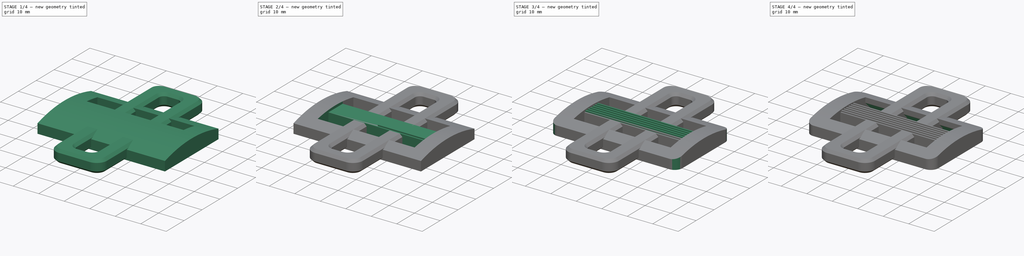
[diagram: build sequence overview — one tinted view per stage of 4, left to right]
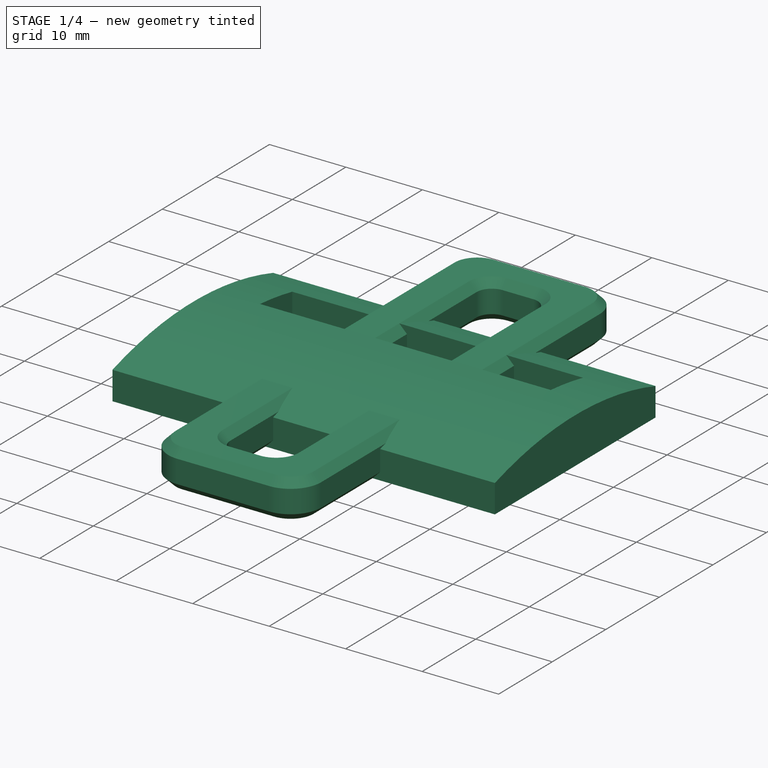
[diagram: stage 1 of 4 — iso view after this stage's code; geometry added in this stage tinted green]
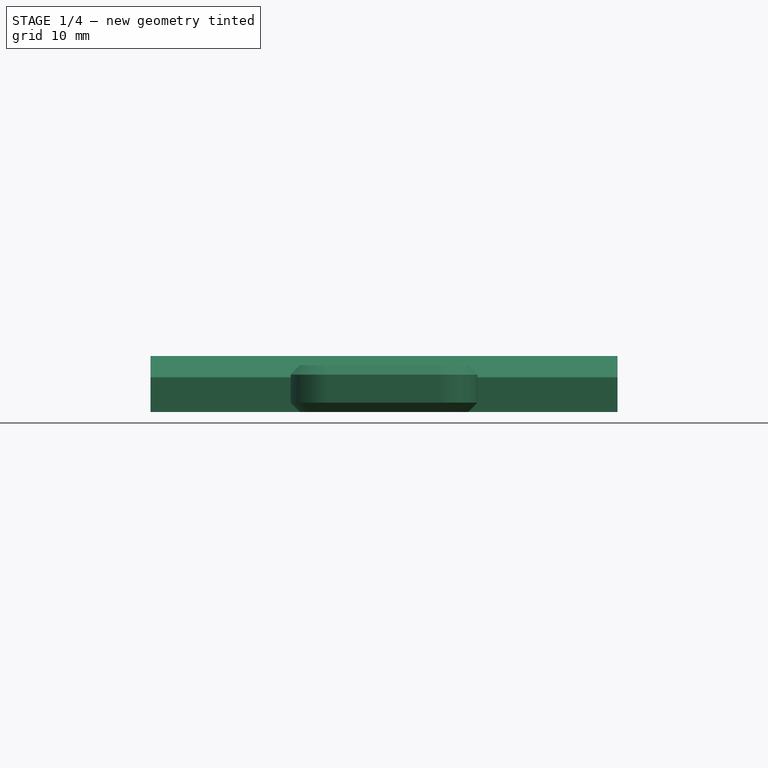
[diagram: stage 1 of 4 — front view after this stage's code; geometry added in this stage tinted green]
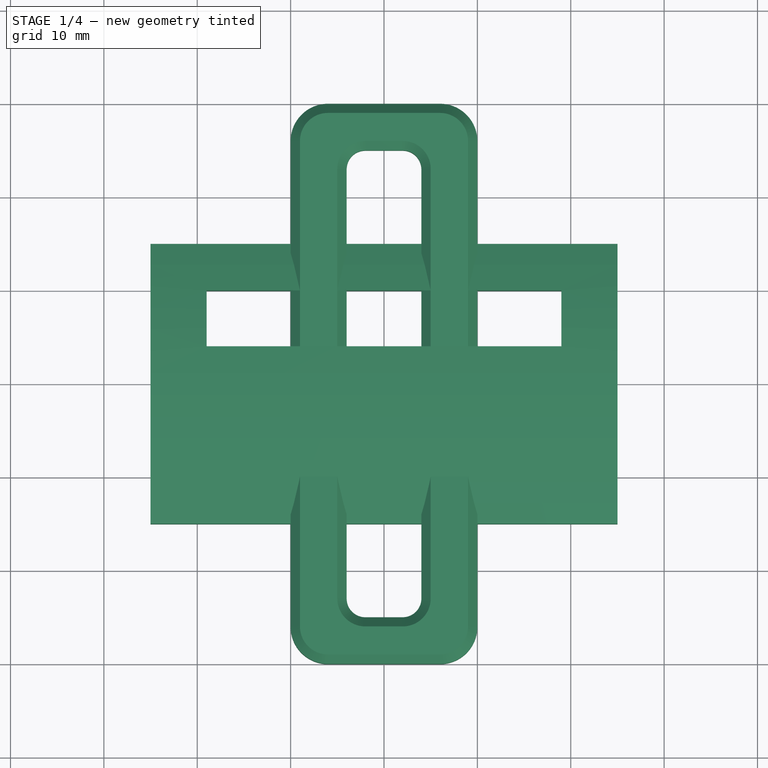
[diagram: stage 1 of 4 — top view after this stage's code; geometry added in this stage tinted green]
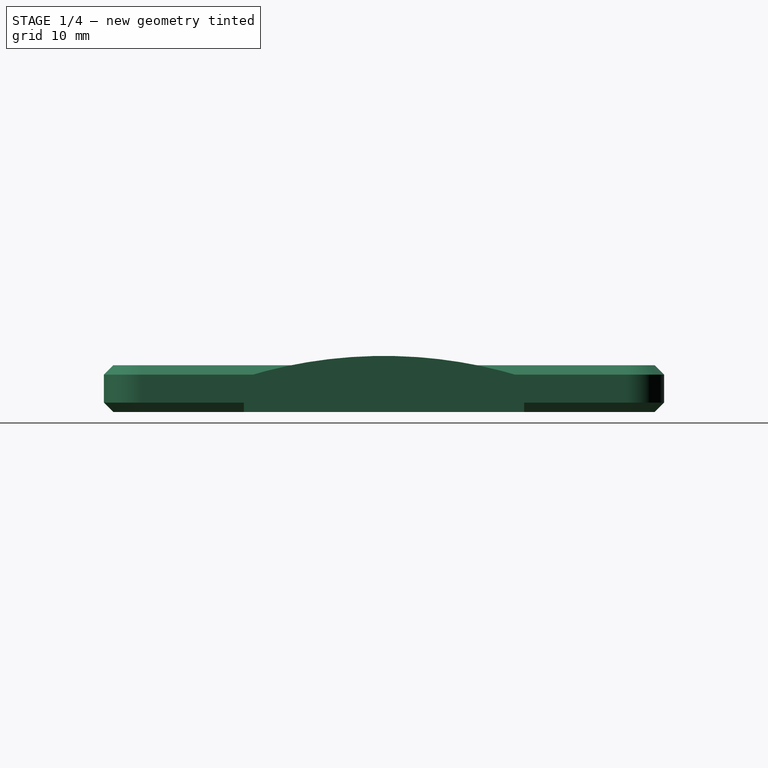
[diagram: stage 1 of 4 — right view after this stage's code; geometry added in this stage tinted green]
FCSTD DOCUMENT  (FreeCAD 2024.408R14555 (Git shallow))
Label: belt buckle
License: All rights reserved
LicenseURL: https://en.wikipedia.org/wiki/All_rights_reserved
objects: Sketcher::SketchObject×6, PartDesign::Pad×4, PartDesign::Pocket×3, PartDesign::Chamfer×3, PartDesign::Mirrored×2, PartDesign::Body×2, PartDesign::LinearPattern×1, PartDesign::Fillet×1
note: 56 computed .brp shape members not serialized (recipe doc carries the construction recipe); baked Part::Feature solids carry a one-line shape summary decoded from their .brp

FEATURE [Sketcher::SketchObject] Sketch
  ArcFitTolerance = 1e-06
  AttachmentSupport = -> [YZ_Plane]
  ExternalBSplineMaxDegree = 5
  ExternalBSplineTolerance = 0.0001
  FixShape = 1
  FullyConstrained = false
  InternalTolerance = 1e-06
  InvalidShape = false
  MakeInternals = false
  MapMode = 5
  Placement = pos=(0,0,0) rot=(0.57735,0.57735,0.57735;2.0944rad)
  Support = -> [YZ_Plane]
  TreeRank = 13
  ValidateShape = false
  sketch-geometry (5):
    g0: LineSegment StartX=-15 StartY=0 StartZ=0 EndX=-15 EndY=3.71209 EndZ=0
    g1: LineSegment StartX=-15 StartY=0 StartZ=0 EndX=15 EndY=0 EndZ=0
    g2: LineSegment StartX=15 StartY=0 StartZ=0 EndX=15 EndY=3.71209 EndZ=0
    g3: ArcOfCircle CenterX=0 CenterY=-44.3154 CenterZ=0 NormalX=0 NormalY=0 NormalZ=1 AngleXU=0 Radius=50.3154 StartAngle=1.26807 EndAngle=1.87352
    g4: LineSegment [constr] StartX=0 StartY=6 StartZ=0 EndX=0 EndY=0 EndZ=0
  constraints (14):
    c: PointOnObject(g0,g-1)
    c: Vertical(g0)
    c: Coincident(g1,g0)
    c: Coincident(g2,g1)
    c: Vertical(g2)
    c: PointOnObject(g3,g-2)
    c: Coincident(g3,g0)
    c: Coincident(g3,g2)
    c: Symmetric(g1,g0,g-2)
    c: DistanceX(g1,g1) = 30
    c: PointOnObject(g4,g3)
    c: Coincident(g4,g-1)
    c: Vertical(g4)
    c: DistanceY(g4,g4) = 6
FEATURE [PartDesign::Pad] Pad
  AddSubType = 0
  AlongSketchNormal = false
  AutoTaperInnerAngle = true
  CheckUpToFaceLimits = true
  ClaimChildren = false
  Direction = (1,-2e-16,3e-16)
  Fit = 0
  FitJoin = 0
  FixShape = 1
  InnerFit = 0
  InnerFitJoin = 0
  InvalidShape = false
  Length = 50
  Length2 = 10
  Linearize = true
  Midplane = true
  NewSolid = false
  Profile = -> Sketch
  ReferenceAxis = -> Sketch [N_Axis]
  Refine = true
  Suppress = false
  TaperInnerAngle = 0
  TaperInnerAngleRev = 0
  TreeRank = 14
  Type = 0
  ValidateShape = false
  _ProfileBasedVersion = 1
FEATURE [Sketcher::SketchObject] Sketch001
  ArcFitTolerance = 1e-06
  AttachmentSupport = -> [XY_Plane]
  ExternalBSplineMaxDegree = 5
  ExternalBSplineTolerance = 0.0001
  FixShape = 1
  FullyConstrained = true
  InternalTolerance = 1e-06
  InvalidShape = false
  MakeInternals = false
  MapMode = 5
  Support = -> [XY_Plane]
  TreeRank = 15
  ValidateShape = false
  sketch-geometry (4):
    g0: LineSegment StartX=-19 StartY=10 StartZ=0 EndX=19 EndY=10 EndZ=0
    g1: LineSegment StartX=19 StartY=10 StartZ=0 EndX=19 EndY=4 EndZ=0
    g2: LineSegment StartX=19 StartY=4 StartZ=0 EndX=-19 EndY=4 EndZ=0
    g3: LineSegment StartX=-19 StartY=4 StartZ=0 EndX=-19 EndY=10 EndZ=0
  constraints (11):
    c: Coincident(g0,g1)
    c: Coincident(g1,g2)
    c: Coincident(g2,g3)
    c: Coincident(g3,g0)
    c: Horizontal(g0)
    c: Vertical(g1)
    c: Vertical(g3)
    c: DistanceY(g1,g1) = 6
    c: DistanceY(g1) = 4
    c: Symmetric(g1,g2,g-2)
    c: DistanceX(g2,g2) = 38
FEATURE [PartDesign::Pocket] Pocket
  AddSubType = 1
  AlongSketchNormal = false
  AutoTaperInnerAngle = true
  BaseFeature = -> Pad
  CheckUpToFaceLimits = true
  ClaimChildren = false
  Direction = (0,0,-1)
  Fit = 0
  FitJoin = 0
  FixShape = 1
  InnerFit = 0
  InnerFitJoin = 0
  InvalidShape = false
  Length = 5
  Length2 = 10
  Linearize = true
  Midplane = true
  NewSolid = false
  Profile = -> Sketch001
  ReferenceAxis = -> Sketch001 [N_Axis]
  Refine = true
  Suppress = false
  TaperInnerAngle = 0
  TaperInnerAngleRev = 0
  TreeRank = 16
  Type = 1
  ValidateShape = false
  _ProfileBasedVersion = 1
  _Version = 1
FEATURE [PartDesign::Body] Body
  AutoGroupSolids = false
  ClaimAllChildren = false
  ExportMode = 0
  FixShape = 1
  Group = -> [Sketch,Pad,Sketch001,Pocket,Mirrored,Sketch002,Pocket001,Sketch003,Pad001,Pad002,LinearPattern,Fillet,Chamfer,Sketch004,Pocket002,Mirrored001,Chamfer001]
  InvalidShape = false
  Origin = -> Origin
  Tip = -> Chamfer001
  TreeRank = 12
  ValidateShape = false
  _ExportChildren = -> [Pad,Pocket,Mirrored,Pocket001,Pad001,Pad002,LinearPattern,Fillet,Chamfer,Pocket002,Mirrored001,Chamfer001]
  _GroupVersion = 1
FEATURE [Sketcher::SketchObject] Sketch005
  ArcFitTolerance = 1e-06
  AttachmentSupport = -> [XY_Plane001]
  ExternalBSplineMaxDegree = 5
  ExternalBSplineTolerance = 0.0001
  FixShape = 1
  FullyConstrained = true
  InternalTolerance = 1e-06
  InvalidShape = false
  MakeInternals = false
  MapMode = 5
  Support = -> [XY_Plane001]
  TreeRank = 42
  ValidateShape = false
  sketch-geometry (20):
    g0: ArcOfCircle CenterX=-6 CenterY=26 CenterZ=0 NormalX=0 NormalY=0 NormalZ=1 AngleXU=0 Radius=4 StartAngle=1.5708 EndAngle=3.14159
    g1: LineSegment StartX=-6 StartY=30 StartZ=0 EndX=6 EndY=30 EndZ=0
    g2: ArcOfCircle CenterX=6 CenterY=26 CenterZ=0 NormalX=0 NormalY=0 NormalZ=1 AngleXU=0 Radius=4 StartAngle=2e-16 EndAngle=1.5708
    g3: LineSegment StartX=10 StartY=26 StartZ=0 EndX=10 EndY=-26 EndZ=0
    g4: ArcOfCircle CenterX=6 CenterY=-26 CenterZ=0 NormalX=0 NormalY=0 NormalZ=1 AngleXU=0 Radius=4 StartAngle=4.71239 EndAngle=6.28319
    g5: LineSegment StartX=6 StartY=-30 StartZ=0 EndX=-6 EndY=-30 EndZ=0
    g6: ArcOfCircle CenterX=-6 CenterY=-26 CenterZ=0 NormalX=0 NormalY=0 NormalZ=1 AngleXU=0 Radius=4 StartAngle=3.14159 EndAngle=4.71239
    g7: LineSegment StartX=-10 StartY=-26 StartZ=0 EndX=-10 EndY=26 EndZ=0
    g8: GeomPoint [constr] X=-10 Y=30 Z=0
    g9: GeomPoint [constr] X=10 Y=-30 Z=0
    g10: ArcOfCircle CenterX=-2 CenterY=23 CenterZ=0 NormalX=0 NormalY=0 NormalZ=1 AngleXU=0 Radius=2 StartAngle=1.5708 EndAngle=3.14159
    g11: LineSegment StartX=-2 StartY=25 StartZ=0 EndX=2 EndY=25 EndZ=0
    g12: ArcOfCircle CenterX=2 CenterY=23 CenterZ=0 NormalX=0 NormalY=0 NormalZ=1 AngleXU=0 Radius=2 StartAngle=6.658e-12 EndAngle=1.5708
    g13: LineSegment StartX=4 StartY=23 StartZ=0 EndX=4 EndY=-23 EndZ=0
    g14: ArcOfCircle CenterX=2 CenterY=-23 CenterZ=0 NormalX=0 NormalY=0 NormalZ=1 AngleXU=0 Radius=2 StartAngle=4.71239 EndAngle=6.28319
    g15: LineSegment StartX=2 StartY=-25 StartZ=0 EndX=-2 EndY=-25 EndZ=0
    g16: ArcOfCircle CenterX=-2 CenterY=-23 CenterZ=0 NormalX=0 NormalY=0 NormalZ=1 AngleXU=0 Radius=2 StartAngle=3.14159 EndAngle=4.71239
    g17: LineSegment StartX=-4 StartY=-23 StartZ=0 EndX=-4 EndY=23 EndZ=0
    g18: GeomPoint [constr] X=-4 Y=25 Z=0
    g19: GeomPoint [constr] X=4 Y=-25 Z=0
  constraints (46):
    c: Tangent(g0,g1) = 1.5708
    c: Tangent(g1,g2) = 1.5708
    c: Tangent(g2,g3) = 1.5708
    c: Tangent(g3,g4) = 1.5708
    c: Tangent(g4,g5) = 1.5708
    c: Tangent(g5,g6) = 1.5708
    c: Tangent(g6,g7) = 1.5708
    c: Tangent(g7,g0) = 1.5708
    c: Horizontal(g1)
    c: Horizontal(g5)
    c: Vertical(g3)
    c: Vertical(g7)
    c: Equal(g0,g2)
    c: Equal(g2,g4)
    c: Equal(g4,g6)
    c: PointOnObject(g8,g1)
    c: PointOnObject(g8,g7)
    c: PointOnObject(g9,g3)
    c: PointOnObject(g9,g5)
    c: Symmetric(g4,g0,g-1)
    c: DistanceY(g4,g1) = 60
    c: DistanceX(g0,g2) = 20
    c: Radius(g2) = 4
    c: Tangent(g10,g11) = 1.5708
    c: Tangent(g11,g12) = 1.5708
    c: Tangent(g12,g13) = 1.5708
    c: Tangent(g13,g14) = 1.5708
    c: Tangent(g14,g15) = 1.5708
    c: Tangent(g15,g16) = 1.5708
    c: Tangent(g16,g17) = 1.5708
    c: Tangent(g17,g10) = 1.5708
    c: Horizontal(g11)
    c: Horizontal(g15)
    c: Vertical(g13)
    c: Vertical(g17)
    c: Equal(g10,g12)
    c: Equal(g12,g14)
    c: Equal(g14,g16)
    c: PointOnObject(g18,g11)
    c: PointOnObject(g18,g17)
    c: PointOnObject(g19,g13)
    c: PointOnObject(g19,g15)
    c: Radius(g12) = 2
    c: Symmetric(g10,g14,g-1)
    c: DistanceX(g10,g12) = 8
    c: DistanceY(g14,g11) = 50
FEATURE [PartDesign::Pad] Pad003
  AddSubType = 0
  AlongSketchNormal = false
  AutoTaperInnerAngle = true
  CheckUpToFaceLimits = true
  ClaimChildren = false
  Direction = (0,0,1)
  Fit = 0
  FitJoin = 0
  FixShape = 1
  InnerFit = 0
  InnerFitJoin = 0
  InvalidShape = false
  Length = 5
  Length2 = 10
  Linearize = true
  NewSolid = false
  Profile = -> Sketch005
  ReferenceAxis = -> Sketch005 [N_Axis]
  Refine = true
  Suppress = false
  TaperInnerAngle = 0
  TaperInnerAngleRev = 0
  TreeRank = 43
  Type = 0
  ValidateShape = false
  _ProfileBasedVersion = 1
FEATURE [PartDesign::Chamfer] Chamfer002
  AddSubType = 0
  Angle = 45
  Base = -> Pad003 [Edge12,Edge13,Edge48,Edge47]
  BaseFeature = -> Pad003
  ChamferType = 0
  FixShape = 1
  FlipDirection = false
  InvalidShape = false
  NewSolid = false
  Refine = true
  Size = 1
  Size2 = 1
  SupportTransform = false
  Suppress = false
  TreeRank = 44
  UseAllEdges = false
  ValidateShape = false
FEATURE [PartDesign::Body] Body001
  AutoGroupSolids = false
  ClaimAllChildren = false
  ExportMode = 0
  FixShape = 1
  Group = -> [Sketch005,Pad003,Chamfer002]
  InvalidShape = false
  Origin = -> Origin001
  Tip = -> Chamfer002
  TreeRank = 41
  ValidateShape = false
  _ExportChildren = -> [Pad003,Chamfer002]
  _GroupVersion = 1
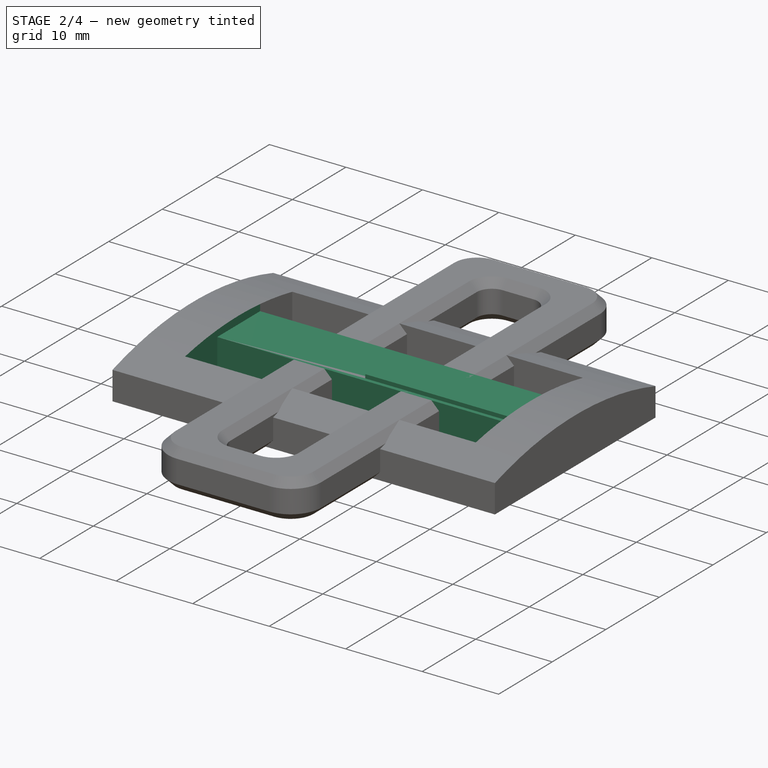
[diagram: stage 2 of 4 — iso view after this stage's code; geometry added in this stage tinted green]
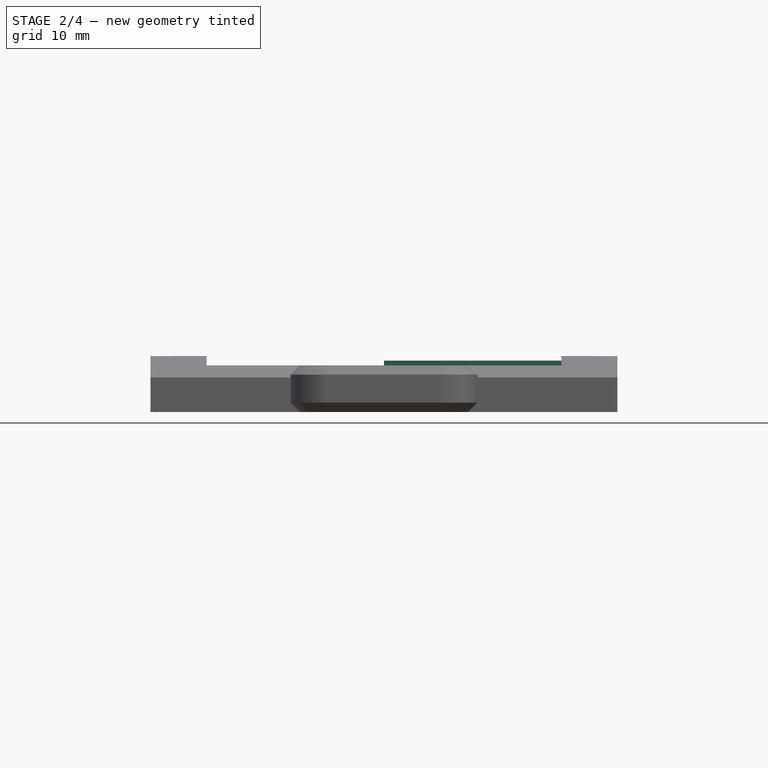
[diagram: stage 2 of 4 — front view after this stage's code; geometry added in this stage tinted green]
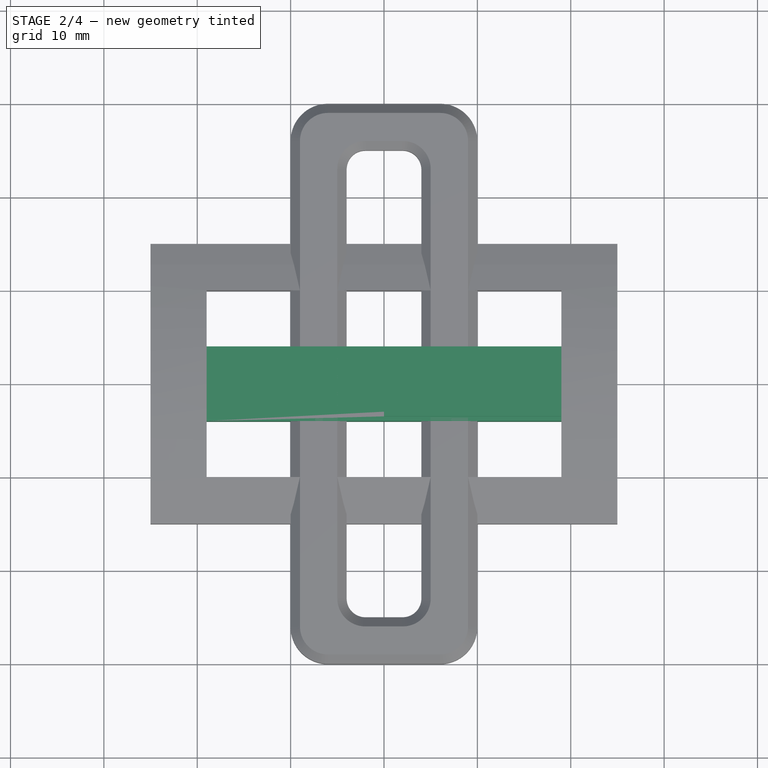
[diagram: stage 2 of 4 — top view after this stage's code; geometry added in this stage tinted green]
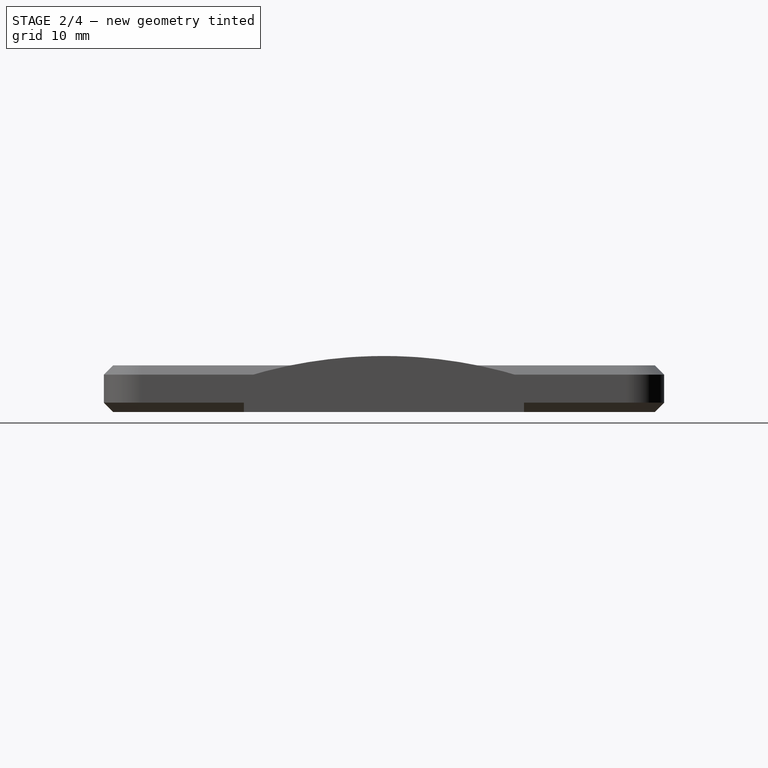
[diagram: stage 2 of 4 — right view after this stage's code; geometry added in this stage tinted green]
FEATURE [PartDesign::Mirrored] Mirrored
  AddSubType = 0
  BaseFeature = -> Pocket
  CopyShape = false
  FixShape = 1
  InvalidShape = false
  MirrorPlane = -> Sketch001 [H_Axis]
  NewSolid = false
  OriginalSubs = -> [Pocket]
  Originals = -> [Pocket]
  ParallelTransform = true
  Refine = true
  SubTransform = true
  Suppress = false
  TreeRank = 17
  ValidateShape = false
  _Version = 3
FEATURE [Sketcher::SketchObject] Sketch002
  ArcFitTolerance = 1e-06
  AttachmentOffset = pos=(0,0,6) rot=(0,0,1;0rad)
  AttachmentSupport = -> [XY_Plane]
  ExternalBSplineMaxDegree = 5
  ExternalBSplineTolerance = 0.0001
  ExternalGeometry = -> [Mirrored]
  FixShape = 1
  FullyConstrained = true
  InternalTolerance = 1e-06
  InvalidShape = false
  MakeInternals = false
  MapMode = 5
  Placement = pos=(0,0,6) rot=(0,0,1;0rad)
  Support = -> [XY_Plane]
  TreeRank = 18
  ValidateShape = false
  sketch-geometry (4):
    g0: LineSegment StartX=-19 StartY=4 StartZ=0 EndX=19 EndY=4 EndZ=0
    g1: LineSegment StartX=19 StartY=4 StartZ=0 EndX=19 EndY=-4 EndZ=0
    g2: LineSegment StartX=19 StartY=-4 StartZ=0 EndX=-19 EndY=-4 EndZ=0
    g3: LineSegment StartX=-19 StartY=-4 StartZ=0 EndX=-19 EndY=4 EndZ=0
  constraints (10):
    c: Coincident(g0,g1)
    c: Coincident(g1,g2)
    c: Coincident(g2,g3)
    c: Coincident(g3,g0)
    c: Horizontal(g0)
    c: Horizontal(g2)
    c: Vertical(g1)
    c: Vertical(g3)
    c: Coincident(g0,g-3)
    c: Coincident(g1,g-4)
FEATURE [PartDesign::Pocket] Pocket001
  AddSubType = 1
  AlongSketchNormal = false
  AutoTaperInnerAngle = true
  BaseFeature = -> Mirrored
  CheckUpToFaceLimits = true
  ClaimChildren = false
  Direction = (0,0,-1)
  Fit = 0
  FitJoin = 0
  FixShape = 1
  InnerFit = 0
  InnerFitJoin = 0
  InvalidShape = false
  Length = 1
  Length2 = 10
  Linearize = true
  NewSolid = false
  Profile = -> Sketch002
  ReferenceAxis = -> Sketch002 [N_Axis]
  Refine = true
  Suppress = false
  TaperInnerAngle = 0
  TaperInnerAngleRev = 0
  TreeRank = 19
  Type = 0
  ValidateShape = false
  _ProfileBasedVersion = 1
  _Version = 1
FEATURE [Sketcher::SketchObject] Sketch003
  ArcFitTolerance = 1e-06
  AttachmentSupport = -> [YZ_Plane]
  ExternalBSplineMaxDegree = 5
  ExternalBSplineTolerance = 0.0001
  ExternalGeometry = -> [Pocket001]
  FixShape = 1
  FullyConstrained = true
  InternalTolerance = 1e-06
  InvalidShape = false
  MakeInternals = false
  MapMode = 5
  Placement = pos=(0,0,0) rot=(0.57735,0.57735,0.57735;2.0944rad)
  Support = -> [YZ_Plane]
  TreeRank = 20
  ValidateShape = false
  sketch-geometry (4):
    g0: LineSegment StartX=-3.5 StartY=5.5 StartZ=0 EndX=-3 EndY=5.5 EndZ=0
    g1: LineSegment StartX=-3 StartY=5.5 StartZ=0 EndX=-3 EndY=5 EndZ=0
    g2: LineSegment StartX=-3 StartY=5 StartZ=0 EndX=-3.5 EndY=5 EndZ=0
    g3: LineSegment StartX=-3.5 StartY=5 StartZ=0 EndX=-3.5 EndY=5.5 EndZ=0
  constraints (12):
    c: Coincident(g0,g1)
    c: Coincident(g1,g2)
    c: Coincident(g2,g3)
    c: Coincident(g3,g0)
    c: Horizontal(g0)
    c: Horizontal(g2)
    c: Vertical(g1)
    c: Vertical(g3)
    c: PointOnObject(g1,g-3)
    c: DistanceX(g0,g0) = 0.5
    c: DistanceY(g3,g3) = 0.5
    c: DistanceX(g-3,g2) = 0.5
FEATURE [PartDesign::Pad] Pad001
  AddSubType = 0
  AlongSketchNormal = false
  AutoTaperInnerAngle = true
  BaseFeature = -> Pocket001
  CheckUpToFaceLimits = true
  ClaimChildren = false
  Direction = (1,-2e-16,3e-16)
  Fit = 0
  FitJoin = 0
  FixShape = 1
  InnerFit = 0
  InnerFitJoin = 0
  InvalidShape = false
  Length = 10
  Length2 = 10
  Linearize = true
  NewSolid = false
  Profile = -> Sketch003
  ReferenceAxis = -> Sketch003 [N_Axis]
  Refine = true
  Suppress = false
  TaperInnerAngle = 0
  TaperInnerAngleRev = 0
  TreeRank = 21
  Type = 3
  UpToFace = -> Pocket001 [Face12]
  ValidateShape = false
  _ProfileBasedVersion = 1
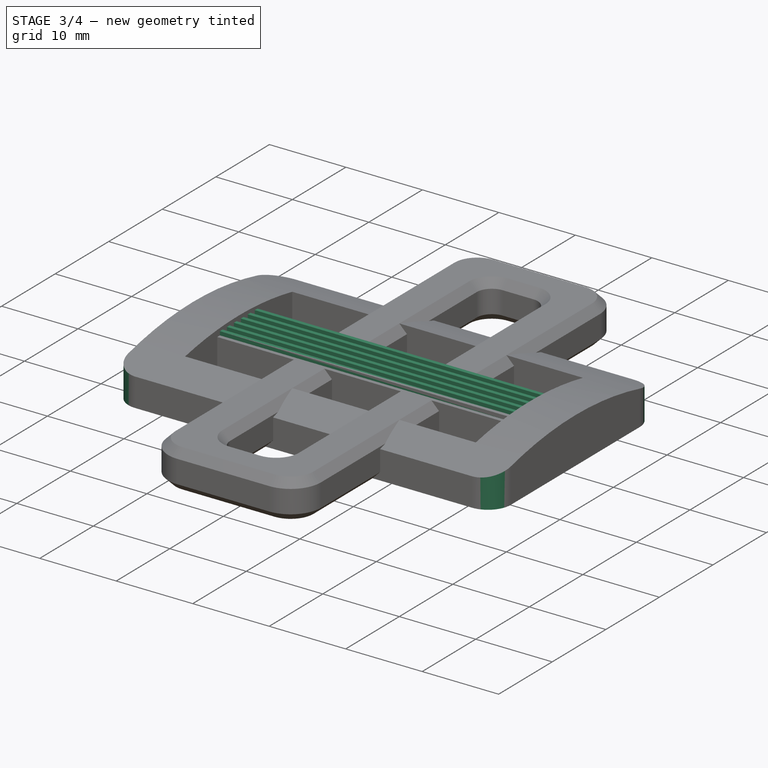
[diagram: stage 3 of 4 — iso view after this stage's code; geometry added in this stage tinted green]
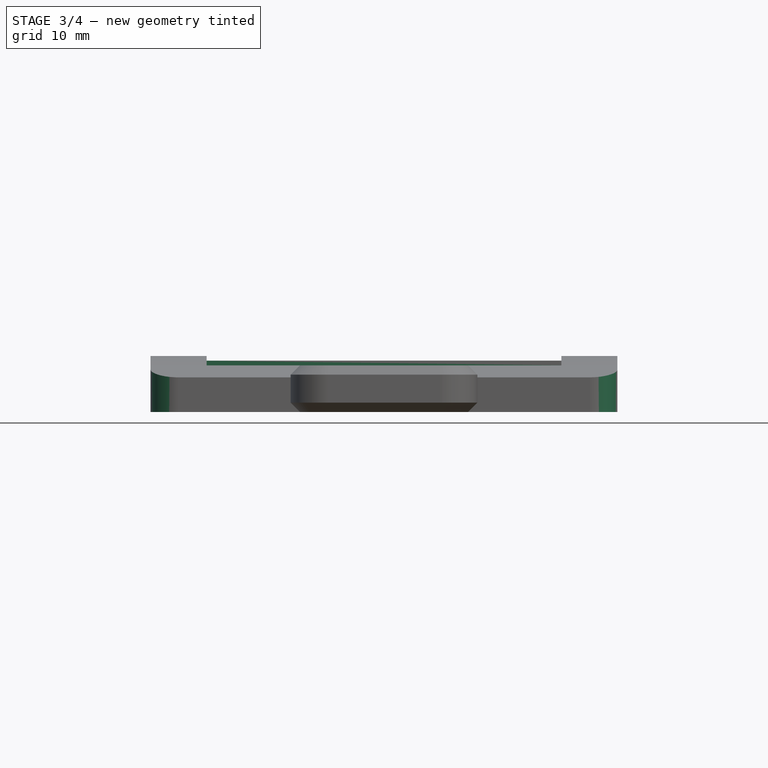
[diagram: stage 3 of 4 — front view after this stage's code; geometry added in this stage tinted green]
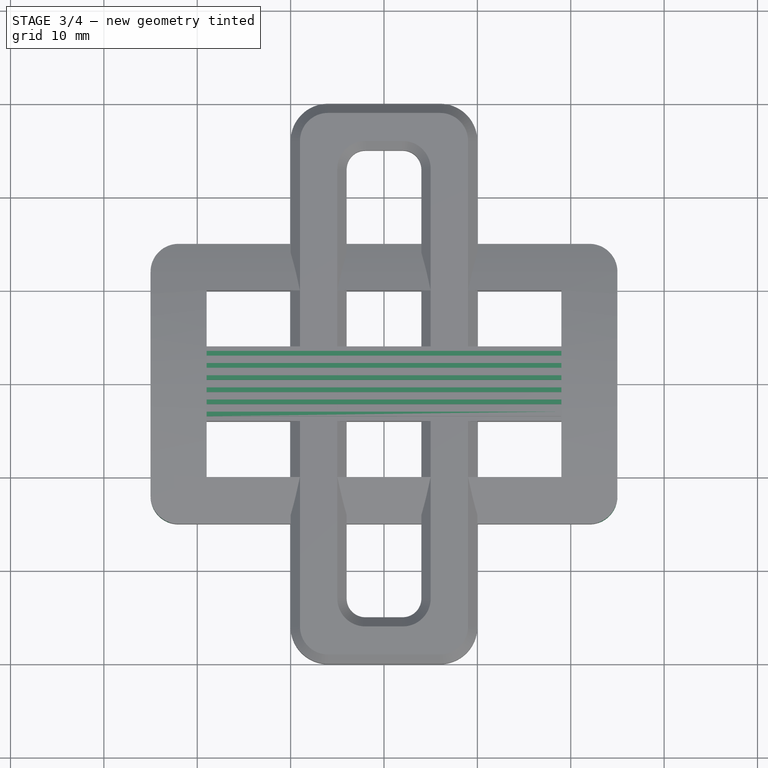
[diagram: stage 3 of 4 — top view after this stage's code; geometry added in this stage tinted green]
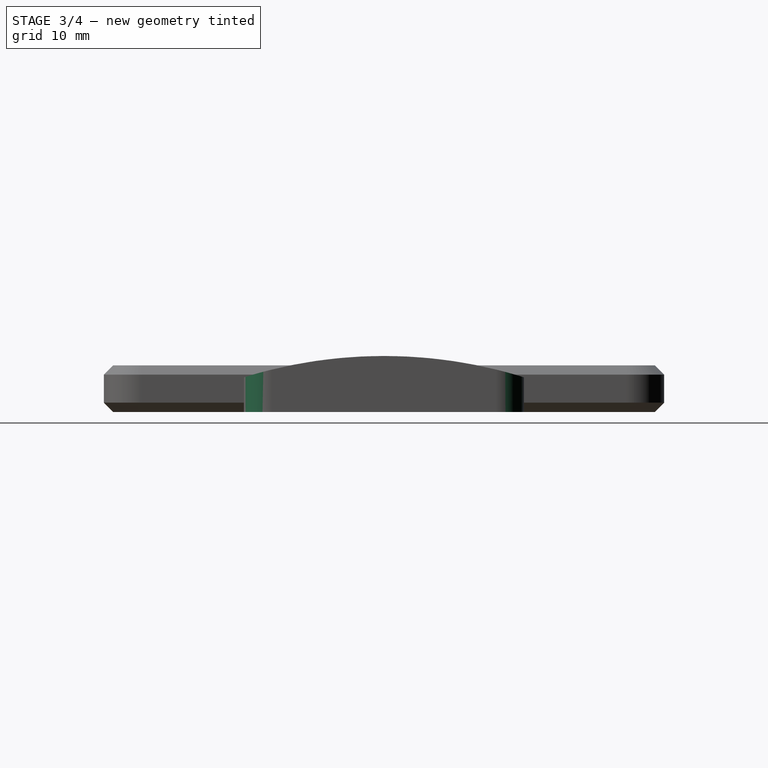
[diagram: stage 3 of 4 — right view after this stage's code; geometry added in this stage tinted green]
FEATURE [PartDesign::Pad] Pad002
  AddSubType = 0
  AlongSketchNormal = false
  AutoTaperInnerAngle = true
  BaseFeature = -> Pad001
  CheckUpToFaceLimits = true
  ClaimChildren = false
  Direction = (1,-2e-16,3e-16)
  Fit = 0
  FitJoin = 0
  FixShape = 1
  InnerFit = 0
  InnerFitJoin = 0
  InvalidShape = false
  Length = 10
  Length2 = 10
  Linearize = true
  NewSolid = false
  Profile = -> Sketch003
  ReferenceAxis = -> Sketch003 [N_Axis]
  Refine = true
  Suppress = false
  TaperInnerAngle = 0
  TaperInnerAngleRev = 0
  TreeRank = 22
  Type = 3
  UpToFace = -> Pad001 [Face10]
  ValidateShape = false
  _ProfileBasedVersion = 1
FEATURE [PartDesign::LinearPattern] LinearPattern
  AddSubType = 0
  BaseFeature = -> Pad002
  CopyShape = false
  Direction = -> Sketch003 [H_Axis]
  FixShape = 1
  InvalidShape = false
  Length = 6.5
  NewSolid = false
  Occurrences = 6
  OriginalSubs = -> [Pad001,Pad002]
  Originals = -> [Pad001,Pad002]
  ParallelTransform = true
  Refine = true
  SubTransform = true
  Suppress = false
  TreeRank = 23
  ValidateShape = false
  _Version = 3
FEATURE [PartDesign::Fillet] Fillet
  AddSubType = 0
  Base = -> LinearPattern [Edge30,Edge4,Edge29,Edge3]
  BaseFeature = -> LinearPattern
  FixShape = 1
  InvalidShape = false
  NewSolid = false
  Radius = 3
  Refine = true
  SupportTransform = false
  Suppress = false
  TreeRank = 24
  UseAllEdges = false
  ValidateShape = false
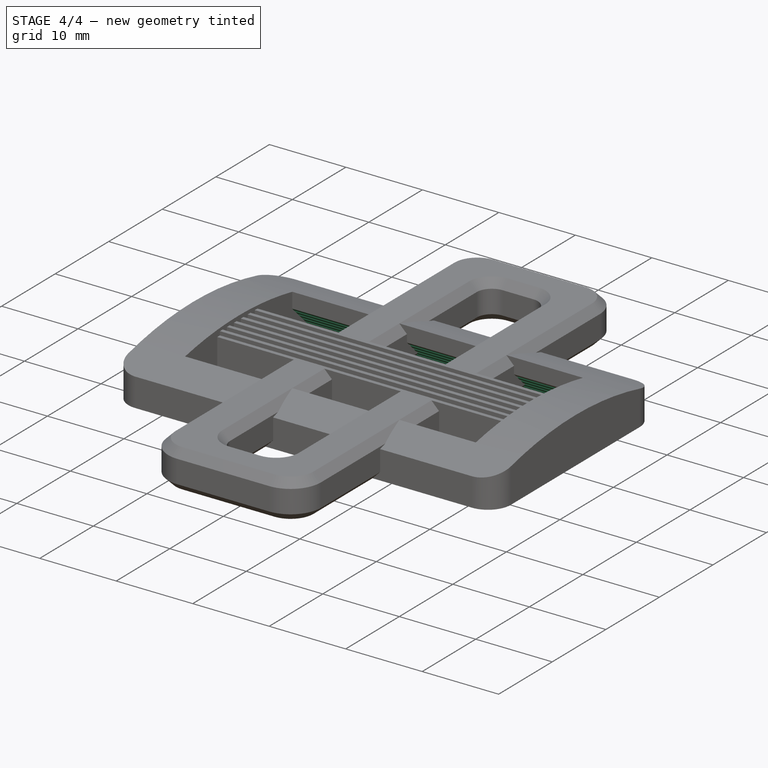
[diagram: stage 4 of 4 — iso view after this stage's code; geometry added in this stage tinted green]
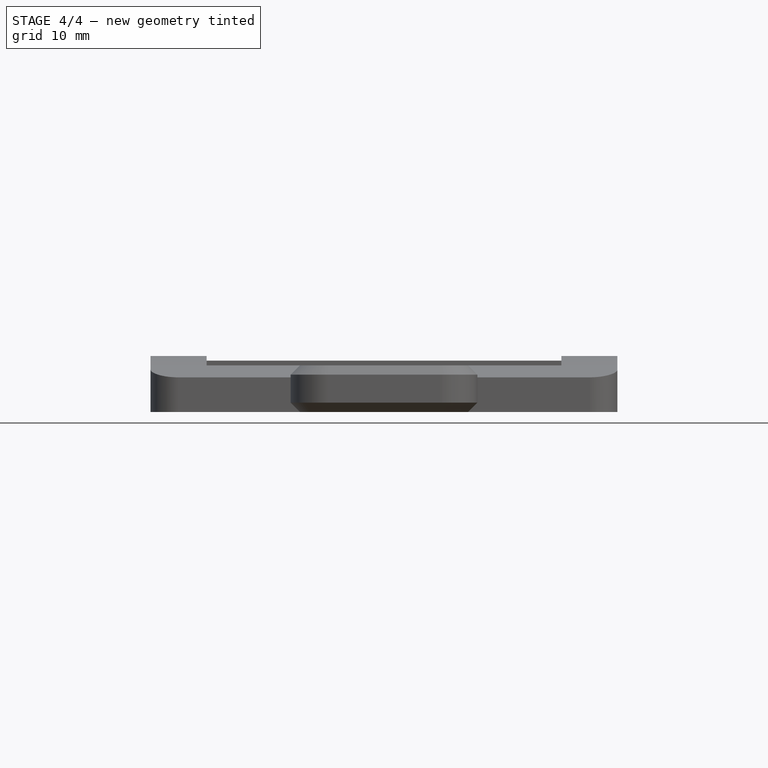
[diagram: stage 4 of 4 — front view after this stage's code; geometry added in this stage tinted green]
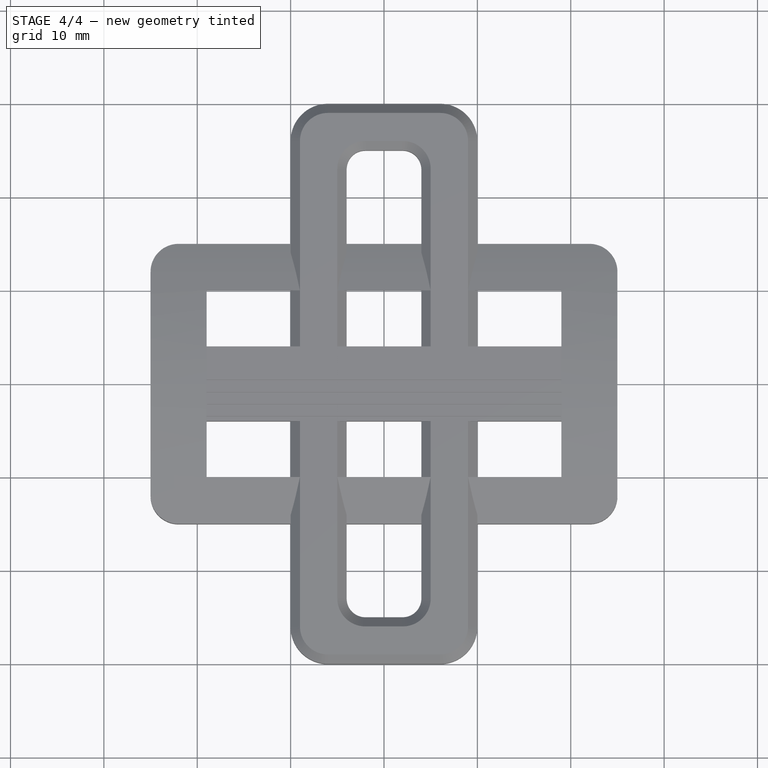
[diagram: stage 4 of 4 — top view after this stage's code; geometry added in this stage tinted green]
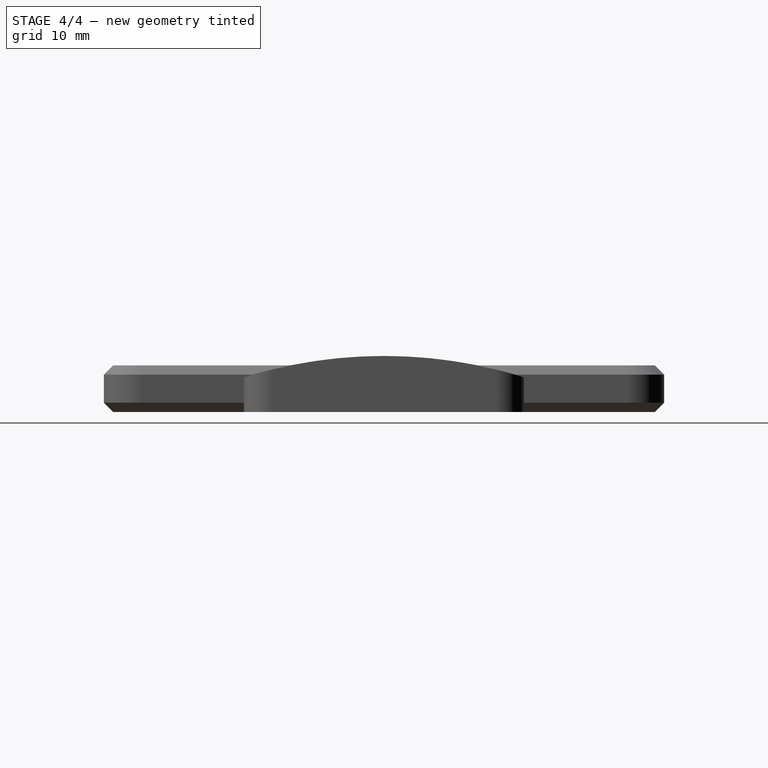
[diagram: stage 4 of 4 — right view after this stage's code; geometry added in this stage tinted green]
FEATURE [PartDesign::Chamfer] Chamfer
  AddSubType = 0
  Angle = 45
  Base = -> Fillet [Edge12,Edge18]
  BaseFeature = -> Fillet
  ChamferType = 0
  FixShape = 1
  FlipDirection = false
  InvalidShape = false
  NewSolid = false
  Refine = true
  Size = 3
  Size2 = 1
  SupportTransform = false
  Suppress = false
  TreeRank = 25
  UseAllEdges = false
  ValidateShape = false
FEATURE [Sketcher::SketchObject] Sketch004
  ArcFitTolerance = 1e-06
  AttachmentOffset = pos=(0,0,0) rot=(0,1,0;1.5708rad)
  AttachmentSupport = -> [Chamfer]
  ExternalBSplineMaxDegree = 5
  ExternalBSplineTolerance = 0.0001
  ExternalGeometry = -> [Chamfer]
  FixShape = 1
  FullyConstrained = true
  InternalTolerance = 1e-06
  InvalidShape = false
  MakeInternals = false
  MapMode = 7
  Placement = pos=(19,-13,9.8e-15) rot=(-0.678598,0.281085,0.678598;3.68962rad)
  Support = -> [Chamfer]
  TreeRank = 26
  ValidateShape = false
  sketch-geometry (17):
    g0: LineSegment StartX=-0.471405 StartY=0 StartZ=0 EndX=-0.707107 EndY=0.235702 EndZ=0
    g1: LineSegment StartX=-0.707107 StartY=0.235702 StartZ=0 EndX=-0.942809 EndY=0 EndZ=0
    g2: LineSegment StartX=-0.942809 StartY=0 StartZ=0 EndX=-0.471405 EndY=0 EndZ=0
    g3: LineSegment StartX=-1.41421 StartY=0 StartZ=0 EndX=-1.64992 EndY=0.235702 EndZ=0
    g4: LineSegment StartX=-1.64992 StartY=0.235702 StartZ=0 EndX=-1.88562 EndY=0 EndZ=0
    g5: LineSegment StartX=-1.88562 StartY=0 StartZ=0 EndX=-1.41421 EndY=0 EndZ=0
    g6: LineSegment StartX=-2.35702 StartY=0 StartZ=0 EndX=-2.59272 EndY=0.235702 EndZ=0
    g7: LineSegment StartX=-2.59272 StartY=0.235702 StartZ=0 EndX=-2.82843 EndY=0 EndZ=0
    g8: LineSegment StartX=-2.82843 StartY=0 StartZ=0 EndX=-2.35702 EndY=0 EndZ=0
    g9: LineSegment StartX=-3.29983 StartY=0 StartZ=0 EndX=-3.53553 EndY=0.235702 EndZ=0
    g10: LineSegment StartX=-3.53553 StartY=0.235702 StartZ=0 EndX=-3.77124 EndY=0 EndZ=0
    g11: LineSegment StartX=-3.77124 StartY=0 StartZ=0 EndX=-3.29983 EndY=0 EndZ=0
    g12: LineSegment [constr] StartX=-3.29983 StartY=0 StartZ=0 EndX=-2.82843 EndY=0 EndZ=0
    g13: LineSegment [constr] StartX=-2.35702 StartY=0 StartZ=0 EndX=-1.88562 EndY=0 EndZ=0
    g14: LineSegment [constr] StartX=-1.41421 StartY=0 StartZ=0 EndX=-0.942809 EndY=0 EndZ=0
    g15: LineSegment [constr] StartX=-0.471405 StartY=0 StartZ=0 EndX=0 EndY=0 EndZ=0
    g16: LineSegment [constr] StartX=-4.24264 StartY=0 StartZ=0 EndX=-3.77124 EndY=0 EndZ=0
  constraints (46):
    c: PointOnObject(g0,g-1)
    c: Coincident(g1,g0)
    c: Coincident(g2,g1)
    c: Coincident(g2,g0)
    c: Horizontal(g2)
    c: PointOnObject(g3,g-1)
    c: Coincident(g4,g3)
    c: PointOnObject(g4,g-1)
    c: Coincident(g5,g4)
    c: Coincident(g5,g3)
    c: PointOnObject(g6,g-1)
    c: Coincident(g8,g7)
    c: Coincident(g8,g6)
    c: Horizontal(g8)
    c: PointOnObject(g9,g-1)
    c: Coincident(g10,g9)
    c: PointOnObject(g10,g-1)
    c: Coincident(g11,g10)
    c: Coincident(g11,g9)
    c: Equal(g11,g8)
    c: Equal(g8,g5)
    c: Equal(g5,g2)
    c: Coincident(g12,g9)
    c: Coincident(g12,g7)
    c: Coincident(g13,g6)
    c: Coincident(g13,g4)
    c: Coincident(g14,g3)
    c: Coincident(g14,g1)
    c: Coincident(g15,g0)
    c: Coincident(g15,g-1)
    c: Coincident(g16,g-3)
    c: Coincident(g16,g10)
    c: Equal(g16,g12)
    c: Equal(g12,g13)
    c: Equal(g13,g14)
    c: Equal(g14,g15)
    c: Equal(g15,g2)
    c: Parallel(g-3,g9)
    c: Parallel(g9,g6)
    c: Parallel(g6,g3)
    c: Parallel(g3,g0)
    c: Coincident(g7,g6)
    c: Perpendicular(g0,g1)
    c: Perpendicular(g3,g4)
    c: Perpendicular(g6,g7)
    c: Perpendicular(g9,g10)
FEATURE [PartDesign::Pocket] Pocket002
  AddSubType = 1
  AlongSketchNormal = false
  AutoTaperInnerAngle = true
  BaseFeature = -> Chamfer
  CheckUpToFaceLimits = true
  ClaimChildren = false
  Direction = (1,1.7e-15,-1e-16)
  Fit = 0
  FitJoin = 0
  FixShape = 1
  InnerFit = 0
  InnerFitJoin = 0
  InvalidShape = false
  Length = 0
  Length2 = 10
  Linearize = true
  NewSolid = false
  Profile = -> Sketch004
  ReferenceAxis = -> Sketch004 [N_Axis]
  Refine = true
  Suppress = false
  TaperInnerAngle = 0
  TaperInnerAngleRev = 0
  TreeRank = 27
  Type = 3
  UpToFace = -> Chamfer [Face2]
  ValidateShape = false
  _ProfileBasedVersion = 1
  _Version = 1
FEATURE [PartDesign::Mirrored] Mirrored001
  AddSubType = 0
  BaseFeature = -> Pocket002
  CopyShape = false
  FixShape = 1
  InvalidShape = false
  MirrorPlane = -> XZ_Plane
  NewSolid = false
  OriginalSubs = -> [Pocket002]
  Originals = -> [Pocket002]
  ParallelTransform = true
  Refine = true
  SubTransform = true
  Suppress = false
  TreeRank = 28
  ValidateShape = false
  _Version = 3
FEATURE [PartDesign::Chamfer] Chamfer001
  AddSubType = 0
  Angle = 45
  Base = -> Mirrored001 [Edge86,Edge98]
  BaseFeature = -> Mirrored001
  ChamferType = 0
  FixShape = 1
  FlipDirection = false
  InvalidShape = false
  NewSolid = false
  Refine = true
  Size = 1
  Size2 = 1
  SupportTransform = false
  Suppress = false
  TreeRank = 29
  UseAllEdges = false
  ValidateShape = false
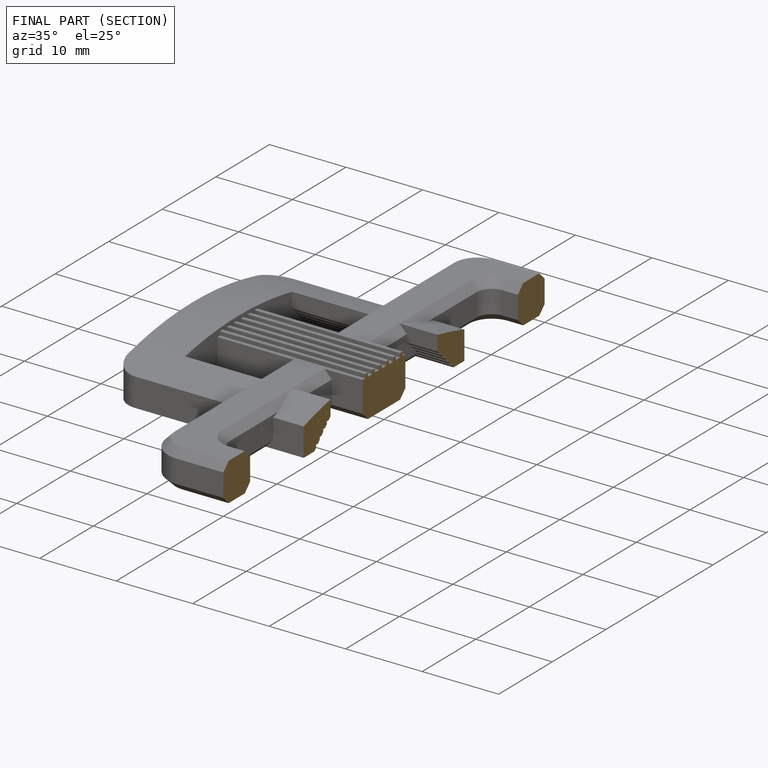
[diagram: finished part — half-section view (interior)]
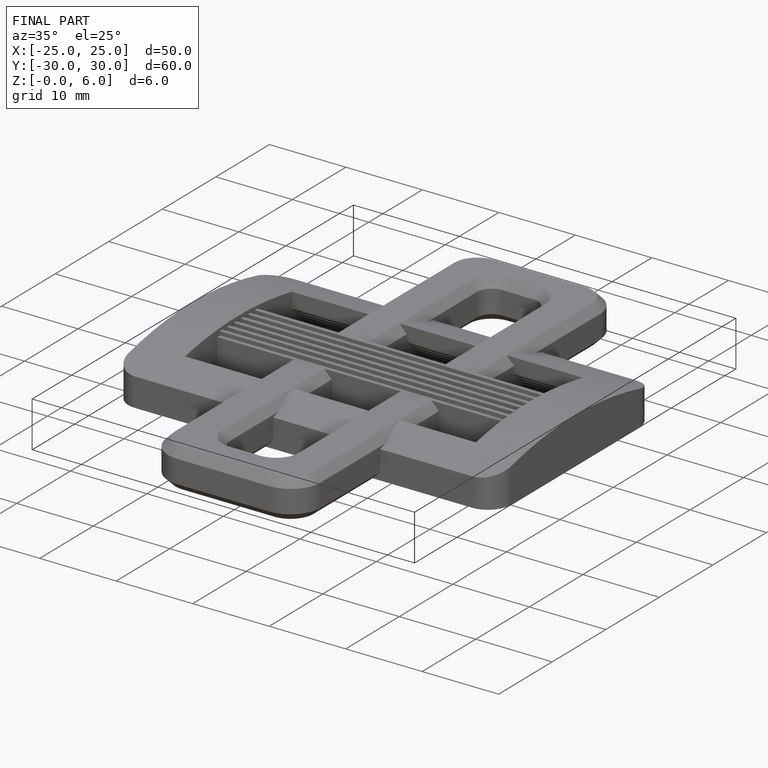
[diagram: finished part — iso view with bounding-box wireframe]
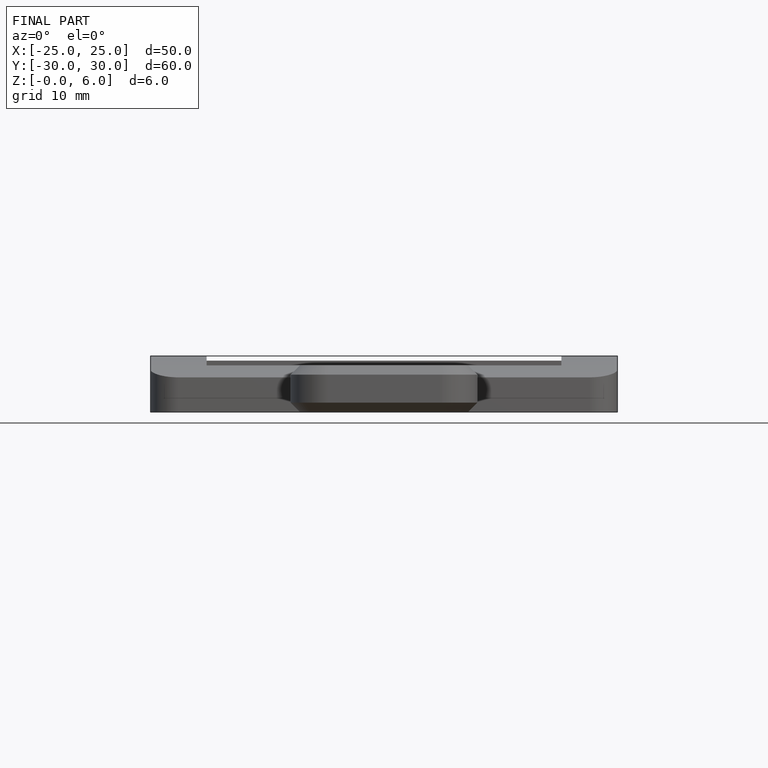
[diagram: finished part — front view with bounding-box wireframe]
